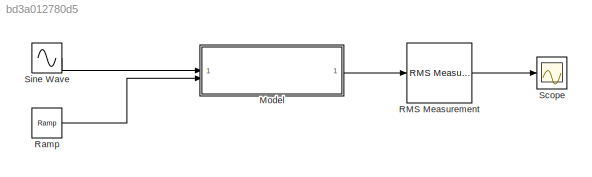
MODEL slx_bd3a012780d5
KIND model
CONFIG AbsTol = auto
CONFIG EnableMultiTasking = off
CONFIG FixedStep = auto
CONFIG MaxStep = auto
CONFIG MinStep = auto
CONFIG RelTol = 1e-3
CONFIG SampleTimeConstraint = Unconstrained
CONFIG SolverName = VariableStepAuto
CONFIG StartTime = 0.0
CONFIG StopTime = 10
BLOCK [ModelReference] Model
  ModelNameDialog = static_arc.slx
  ModelReferenceVersion = 1.7
BLOCK [Reference] RMS Measurement  REF=eeRmsMeasurement/RMS
Measurement
  LibrarySourceBlock = ee_sl_lib/Measurements/RMS\nMeasurement
  SourceBlock = eeRmsMeasurement/RMS\nMeasurement
  SourceType = RMS Measurement
BLOCK [Reference] Ramp  REF=simulink/Sources/Ramp
  SourceBlock = simulink/Sources/Ramp
  SourceType = Ramp
BLOCK [Scope] Scope
  ActiveDisplayYMaximum = 0.016839020680203848
  ActiveDisplayYMinimum = -0.0002034056521694437
  Floating = off
  GraphicalSettings = {"Style":{"BackgroundColor":[0.12941176470588237,0.12941176470588237,0.12941176470588237],"AxesColor":[0.07058823529411765,0.07058823529411765,0.07058823529411765],"LabelsColor":[0.8509803921568627,0.8509803921568627,0.8509803921568627],"PreserveColors":false,"Visible":[true],"LineStyle":["-"],"LineWidth":[1.5],"BarWidth":[0.9],"LineColor":["auto"],"LineFaceAlpha":[1],"LineEdgeAlpha":[1],"Marker":...<+2029ch>
  MultipleDisplayCache = [{"MaxYLimMag":0.019575841057445295,"MaxYLimReal":0.016839020680203848,"MinYLimMag":0,"MinYLimReal":-0.0002034056521694437,"PlotAsMagnitudePhase":false,"ShowGrid":true,"ShowLegend":false,"Title":"%<SignalLabel>","YLabel":""}]
  NumInputPorts = 1
  ScopeFrameLocation = window
  WasSavedAsWebScope = on
  WindowPosition = [573.000000,323.000000,560.000000,420.000000,]
BLOCK [Sin] Sine Wave
  Amplitude = sqrt(2) * 650
  Frequency = 2 * pi * 50
  SampleTime = 1e-5
LINE Model:1 -> RMS Measurement:1
LINE RMS Measurement:1 -> Scope:1
LINE Ramp:1 -> Model:2
LINE Sine Wave:1 -> Model:1
